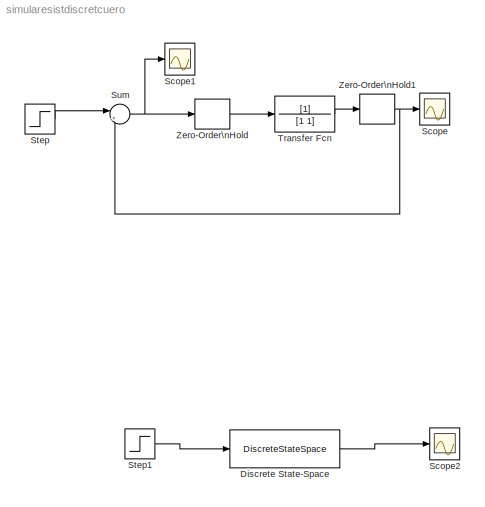
MODEL simularesistdiscretcuero
KIND model
BLOCK [DiscreteStateSpace] Discrete State-Space
  A = [0 -0.25;1 1]
  B = [1;1]
  C = [0 1]
  D = 0
  SampleTime = 0.2
  X0 = [1;1]
BLOCK [Scope] Scope
  DataFormat = StructureWithTime
  Floating = off
  NumInputPorts = 1
  Ports = [1]
  SampleTime = 0
BLOCK [Scope] Scope1
  DataFormat = StructureWithTime
  Floating = off
  NumInputPorts = 1
  Ports = [1]
  SampleTime = 0
  SaveName = ScopeData1
BLOCK [Scope] Scope2
  DataFormat = StructureWithTime
  Floating = off
  NumInputPorts = 1
  Ports = [1]
  SampleTime = 0
  SaveName = ScopeData2
BLOCK [Step] Step
  SampleTime = 0.2
BLOCK [Step] Step1
  SampleTime = 0.2
  Time = 0
BLOCK [Sum] Sum
  IconShape = round
  InputSameDT = off
  Inputs = |+-
  OutDataType = sfix(16)
  OutDataTypeMode = Inherit via internal rule
  OutDataTypeStr = Inherit: Inherit via internal rule
  OutScaling = 2^0
  Ports = [2, 1]
  SaturateOnIntegerOverflow = off
BLOCK [TransferFcn] Transfer Fcn
  Denominator = [1 1]
BLOCK [ZeroOrderHold] Zero-Order\nHold
  SampleTime = 0.2
BLOCK [ZeroOrderHold] Zero-Order\nHold1
  SampleTime = 0.2
LINE Discrete State-Space:1 -> Scope2:1
LINE Step1:1 -> Discrete State-Space:1
LINE Step:1 -> Sum:1
NET Sum:1 -> Scope1:1, Zero-Order\nHold:1
LINE Transfer Fcn:1 -> Zero-Order\nHold1:1
NET Zero-Order\nHold1:1 -> Scope:1, Sum:2
LINE Zero-Order\nHold:1 -> Transfer Fcn:1
note: NET lines group one-source signal fan-out (src -> all destinations, sorted); 1:1 wires keep LINE
